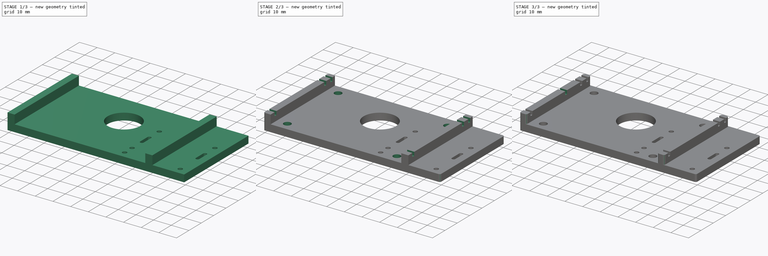
[diagram: build sequence overview — one tinted view per stage of 3, left to right]
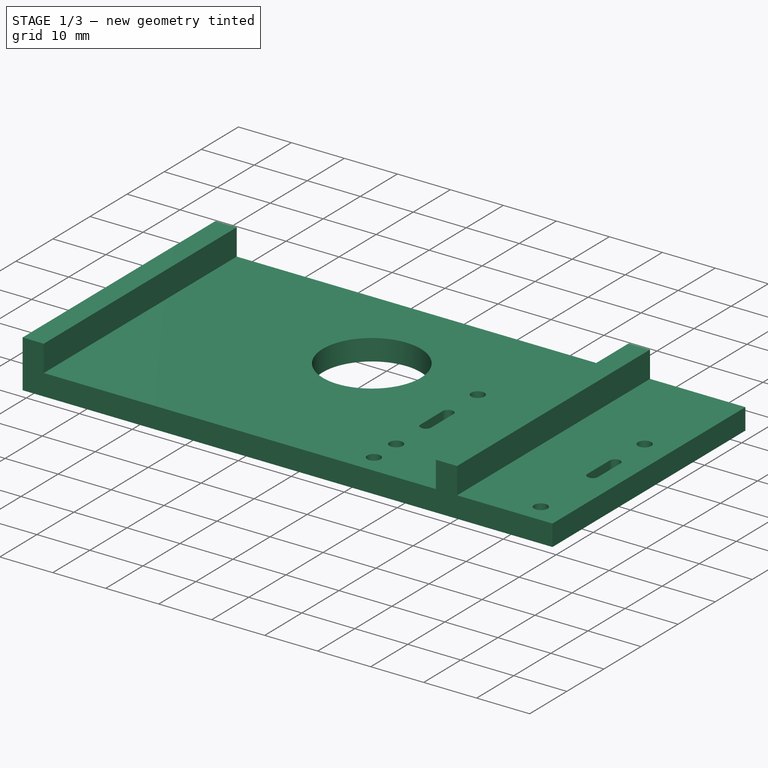
[diagram: stage 1 of 3 — iso view after this stage's code; geometry added in this stage tinted green]
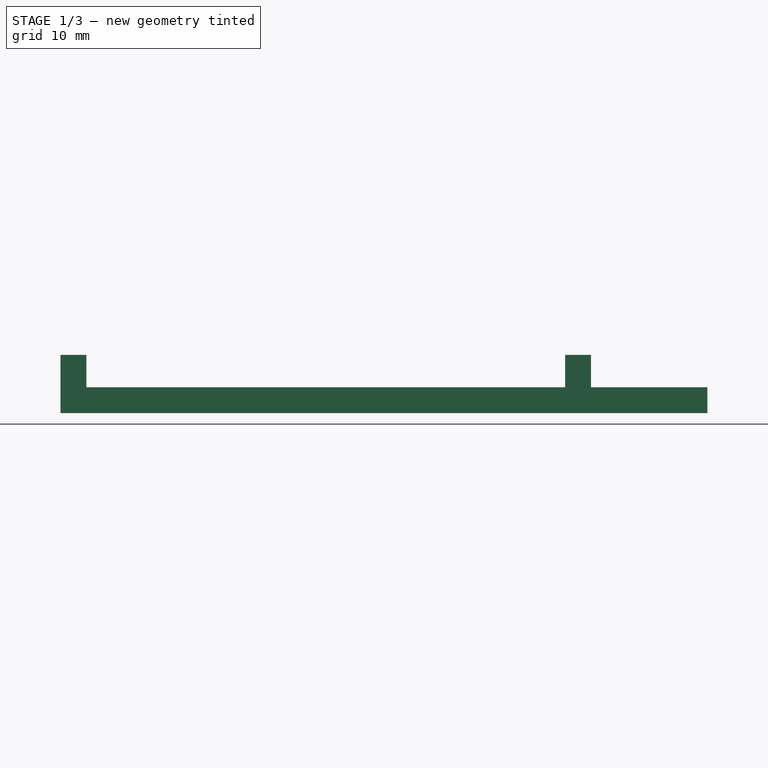
[diagram: stage 1 of 3 — front view after this stage's code; geometry added in this stage tinted green]
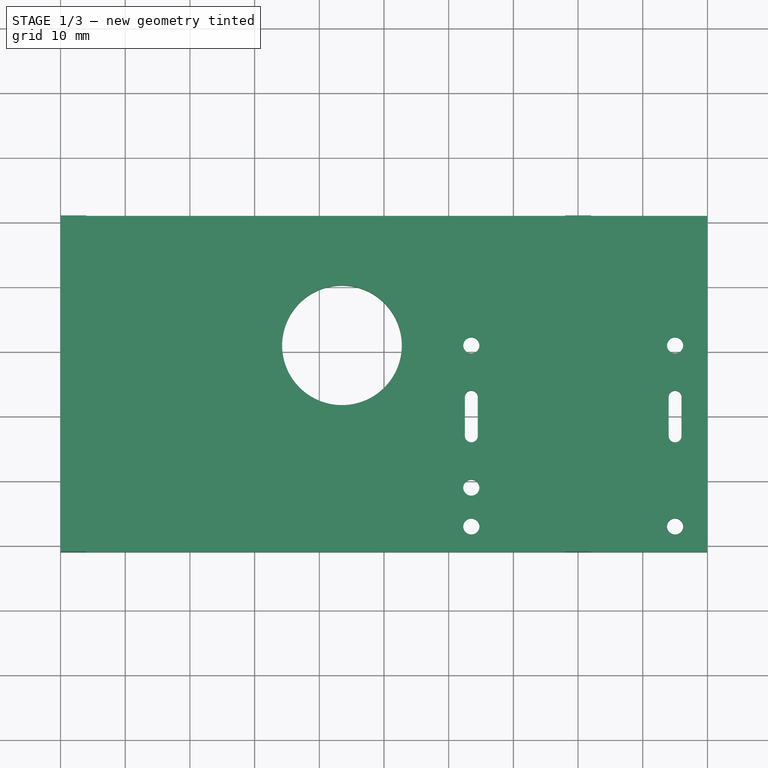
[diagram: stage 1 of 3 — top view after this stage's code; geometry added in this stage tinted green]
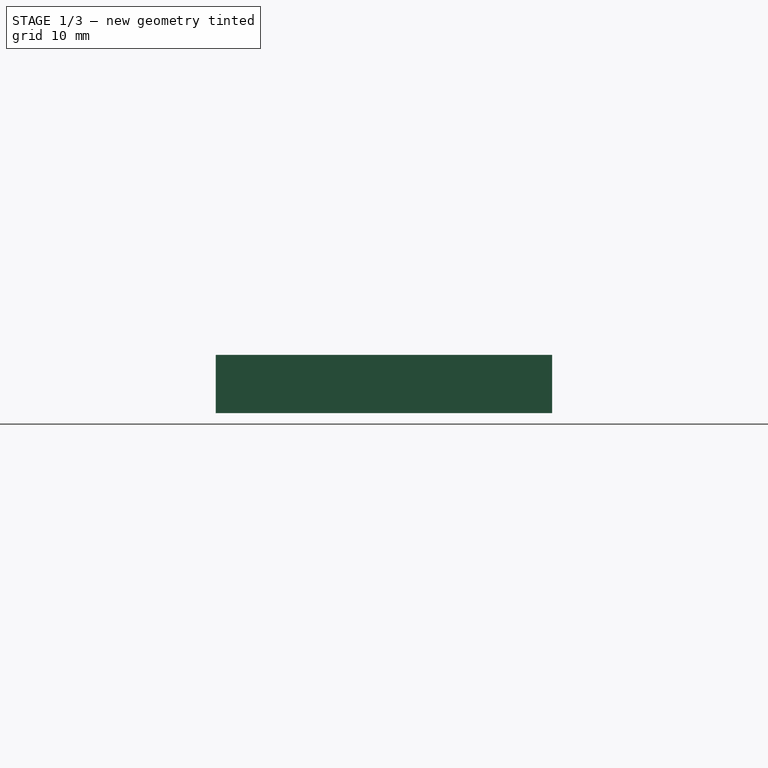
[diagram: stage 1 of 3 — right view after this stage's code; geometry added in this stage tinted green]
FCSTD DOCUMENT  (FreeCAD 0.19R)
Label: output_stage_base
License: All rights reserved
LicenseURL: http://en.wikipedia.org/wiki/All_rights_reserved
objects: Sketcher::SketchObject×5, PartDesign::Pocket×3, PartDesign::Pad×2, PartDesign::Fillet×2, PartDesign::Body×1
note: 20 computed .brp shape members not serialized (recipe doc carries the construction recipe); baked Part::Feature solids carry a one-line shape summary decoded from their .brp

FEATURE [Sketcher::SketchObject] Sketch
  FullyConstrained = true
  MapMode = 5
  Support = -> [XY_Plane]
  sketch-geometry (18):
    g0: LineSegment StartX=-50 StartY=31 StartZ=0 EndX=50 EndY=31 EndZ=0
    g1: LineSegment StartX=50 StartY=31 StartZ=0 EndX=50 EndY=-21 EndZ=0
    g2: LineSegment StartX=50 StartY=-21 StartZ=0 EndX=-50 EndY=-21 EndZ=0
    g3: LineSegment StartX=-50 StartY=-21 StartZ=0 EndX=-50 EndY=31 EndZ=0
    g4: LineSegment StartX=46 StartY=3 StartZ=0 EndX=46 EndY=-3 EndZ=0
    g5: LineSegment StartX=44 StartY=-3 StartZ=0 EndX=44 EndY=3 EndZ=0
    g6: ArcOfCircle CenterX=45 CenterY=3 CenterZ=0 NormalX=0 NormalY=0 NormalZ=1 AngleXU=0 Radius=1 StartAngle=0 EndAngle=3.14159
    g7: ArcOfCircle CenterX=45 CenterY=-3 CenterZ=0 NormalX=0 NormalY=0 NormalZ=1 AngleXU=0 Radius=1 StartAngle=3.14159 EndAngle=6.28319
    g8: LineSegment StartX=14.5 StartY=3 StartZ=0 EndX=14.5 EndY=-3 EndZ=0
    g9: LineSegment StartX=12.5 StartY=3 StartZ=0 EndX=12.5 EndY=-3 EndZ=0
    g10: ArcOfCircle CenterX=13.5 CenterY=3 CenterZ=0 NormalX=0 NormalY=0 NormalZ=1 AngleXU=0 Radius=1 StartAngle=0 EndAngle=3.14159
    g11: ArcOfCircle CenterX=13.5 CenterY=-3 CenterZ=0 NormalX=0 NormalY=0 NormalZ=1 AngleXU=0 Radius=1 StartAngle=3.14159 EndAngle=6.28319
    g12: Circle CenterX=13.5 CenterY=11 CenterZ=0 NormalX=0 NormalY=0 NormalZ=1 AngleXU=0 Radius=1.25
    g13: Circle CenterX=13.5 CenterY=-11 CenterZ=0 NormalX=0 NormalY=0 NormalZ=1 AngleXU=0 Radius=1.25
    g14: Circle CenterX=13.5 CenterY=-17 CenterZ=0 NormalX=0 NormalY=0 NormalZ=1 AngleXU=0 Radius=1.25
    g15: Circle CenterX=45 CenterY=-17 CenterZ=0 NormalX=0 NormalY=0 NormalZ=1 AngleXU=0 Radius=1.25
    g16: Circle CenterX=45 CenterY=11 CenterZ=0 NormalX=0 NormalY=0 NormalZ=1 AngleXU=0 Radius=1.25
    g17: Circle CenterX=-6.5 CenterY=11 CenterZ=0 NormalX=0 NormalY=0 NormalZ=1 AngleXU=0 Radius=9.25
  constraints (52):
    c: Coincident(g0,g1)
    c: Coincident(g1,g2)
    c: Coincident(g2,g3)
    c: Coincident(g3,g0)
    c: Horizontal(g0)
    c: Vertical(g1)
    c: Vertical(g3)
    c: Symmetric(g2,g1,g-2)
    c: DistanceX(g0,g0) = 100
    c: DistanceY(g1,g1) = 52
    c: DistanceY(g1,g-1) = 21
    c: Symmetric(g8,g8,g-1)
    c: Symmetric(g5,g5,g-1)
    c: Symmetric(g4,g4,g-1)
    c: Symmetric(g9,g9,g-1)
    c: Equal(g9,g8)
    c: Equal(g8,g5)
    c: Equal(g5,g4)
    c: Coincident(g10,g9)
    c: Coincident(g10,g8)
    c: Coincident(g5,g6)
    c: Coincident(g4,g6)
    c: Coincident(g11,g9)
    c: Coincident(g11,g8)
    c: Coincident(g7,g5)
    c: Coincident(g7,g4)
    c: Horizontal(g10,g9)
    c: Horizontal(g6,g5)
    c: Horizontal(g11,g9)
    c: Horizontal(g7,g5)
    c: Equal(g10,g6)
    c: DistanceX(g5,g4) = 2
    c: DistanceY(g7,g6) = 6
    c: DistanceX(g10,g6) = 31.5
    c: DistanceX(g7,g1) = 5
    c: Equal(g15,g14)
    c: Equal(g14,g13)
    c: Equal(g13,g12)
    c: Symmetric(g13,g12,g-1)
    c: Vertical(g13,g14)
    c: Vertical(g14,g11)
    c: Horizontal(g14,g15)
    c: Vertical(g15,g7)
    c: Equal(g16,g12)
    c: Horizontal(g12,g16)
    c: Vertical(g6,g16)
    c: Diameter(g15) = 2.5
    c: DistanceY(g-1,g16) = 11
    c: DistanceY(g14,g-1) = 17
    c: Horizontal(g17,g12)
    c: DistanceX(g17,g12) = 20
    c: Diameter(g17) = 18.5
FEATURE [PartDesign::Pad] Pad
  Direction = (1,1,1)
  Length = 4
  Length2 = 100
  Profile = -> Sketch
  Type = 0
FEATURE [Sketcher::SketchObject] Sketch001
  FullyConstrained = true
  MapMode = 5
  Placement = pos=(0,0,4) rot=(0,0,1;0rad)
  Support = -> [Pad]
  sketch-geometry (8):
    g0: LineSegment StartX=-50 StartY=31 StartZ=0 EndX=-46 EndY=31 EndZ=0
    g1: LineSegment StartX=-46 StartY=31 StartZ=0 EndX=-46 EndY=-21 EndZ=0
    g2: LineSegment StartX=-46 StartY=-21 StartZ=0 EndX=-50 EndY=-21 EndZ=0
    g3: LineSegment StartX=-50 StartY=-21 StartZ=0 EndX=-50 EndY=31 EndZ=0
    g4: LineSegment StartX=28 StartY=31 StartZ=0 EndX=32 EndY=31 EndZ=0
    g5: LineSegment StartX=32 StartY=31 StartZ=0 EndX=32 EndY=-21 EndZ=0
    g6: LineSegment StartX=32 StartY=-21 StartZ=0 EndX=28 EndY=-21 EndZ=0
    g7: LineSegment StartX=28 StartY=-21 StartZ=0 EndX=28 EndY=31 EndZ=0
  constraints (24):
    c: Coincident(g0,g1)
    c: Coincident(g1,g2)
    c: Coincident(g2,g3)
    c: Coincident(g3,g0)
    c: Horizontal(g0)
    c: Horizontal(g2)
    c: Vertical(g1)
    c: Vertical(g3)
    c: Coincident(g4,g5)
    c: Coincident(g5,g6)
    c: Coincident(g6,g7)
    c: Coincident(g7,g4)
    c: Horizontal(g4)
    c: Horizontal(g6)
    c: Vertical(g5)
    c: Vertical(g7)
    c: DistanceX(g2,g-1) = 50
    c: DistanceX(g2,g2) = 4
    c: DistanceX(g-1,g5) = 32
    c: Equal(g6,g2)
    c: Equal(g5,g1)
    c: DistanceY(g5,g-1) = 21
    c: Horizontal(g6,g1)
    c: DistanceY(g5,g5) = 52
FEATURE [PartDesign::Pad] Pad001
  BaseFeature = -> Pad
  Direction = (1,1,1)
  Length = 5
  Length2 = 100
  Profile = -> Sketch001
  Type = 0
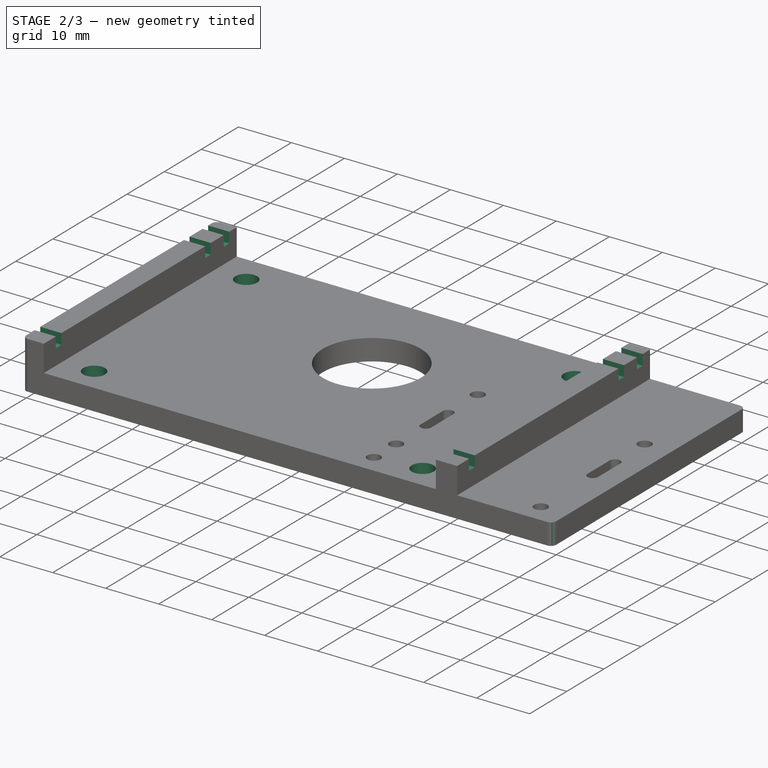
[diagram: stage 2 of 3 — iso view after this stage's code; geometry added in this stage tinted green]
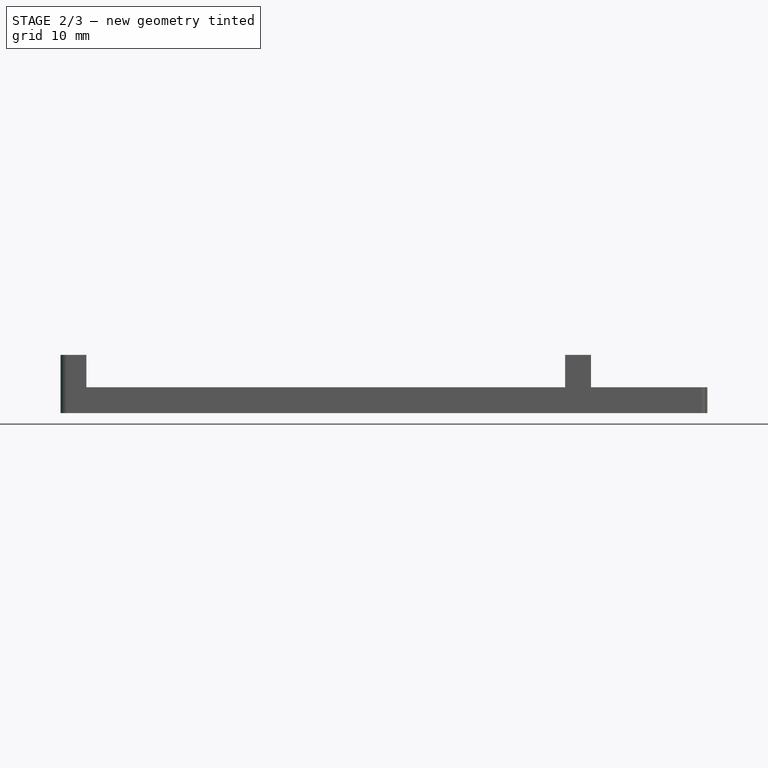
[diagram: stage 2 of 3 — front view after this stage's code; geometry added in this stage tinted green]
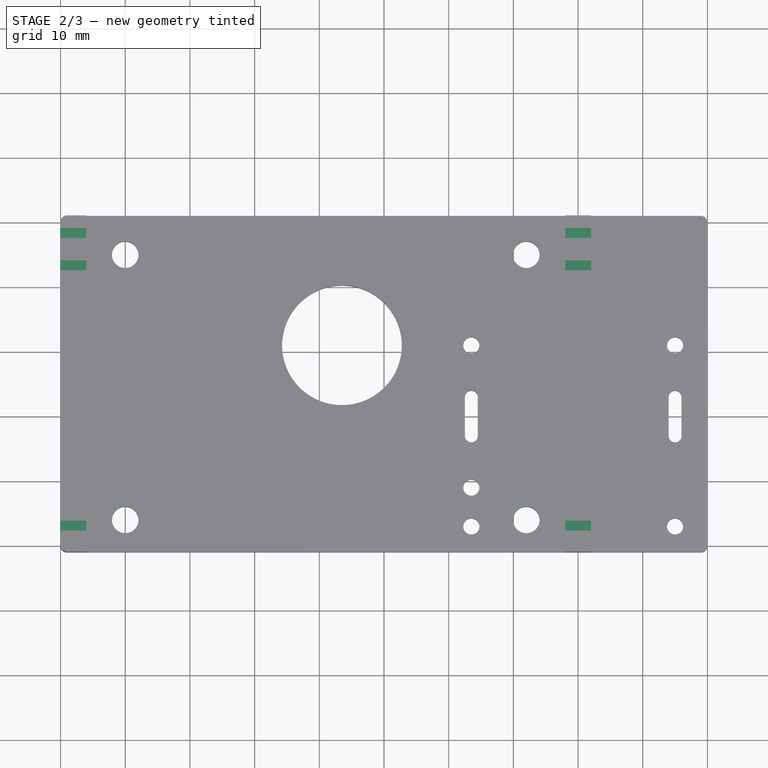
[diagram: stage 2 of 3 — top view after this stage's code; geometry added in this stage tinted green]
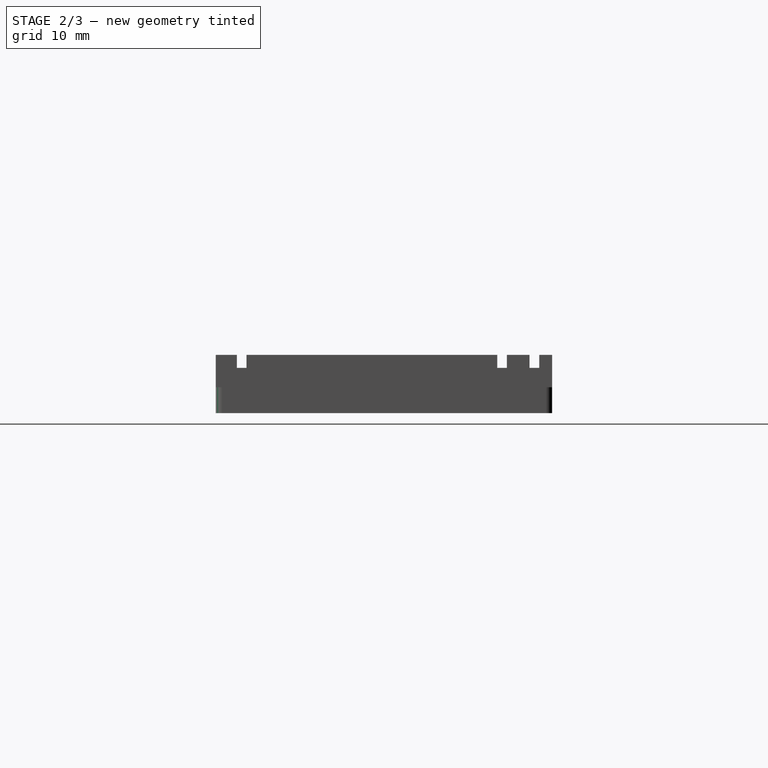
[diagram: stage 2 of 3 — right view after this stage's code; geometry added in this stage tinted green]
FEATURE [Sketcher::SketchObject] Sketch002
  FullyConstrained = true
  MapMode = 5
  Placement = pos=(0,0,9) rot=(0,0,1;0rad)
  Support = -> [Pad001]
  sketch-geometry (12):
    g0: LineSegment StartX=-50 StartY=29 StartZ=0 EndX=32 EndY=29 EndZ=0
    g1: LineSegment StartX=32 StartY=29 StartZ=0 EndX=32 EndY=27.5 EndZ=0
    g2: LineSegment StartX=32 StartY=27.5 StartZ=0 EndX=-50 EndY=27.5 EndZ=0
    g3: LineSegment StartX=-50 StartY=27.5 StartZ=0 EndX=-50 EndY=29 EndZ=0
    g4: LineSegment StartX=-50 StartY=22.5 StartZ=0 EndX=32 EndY=22.5 EndZ=0
    g5: LineSegment StartX=32 StartY=22.5 StartZ=0 EndX=32 EndY=24 EndZ=0
    g6: LineSegment StartX=32 StartY=24 StartZ=0 EndX=-50 EndY=24 EndZ=0
    g7: LineSegment StartX=-50 StartY=24 StartZ=0 EndX=-50 EndY=22.5 EndZ=0
    g8: LineSegment StartX=-50 StartY=-16.25 StartZ=0 EndX=32 EndY=-16.25 EndZ=0
    g9: LineSegment StartX=32 StartY=-16.25 StartZ=0 EndX=32 EndY=-17.75 EndZ=0
    g10: LineSegment StartX=32 StartY=-17.75 StartZ=0 EndX=-50 EndY=-17.75 EndZ=0
    g11: LineSegment StartX=-50 StartY=-17.75 StartZ=0 EndX=-50 EndY=-16.25 EndZ=0
  constraints (36):
    c: Coincident(g0,g1)
    c: Coincident(g1,g2)
    c: Coincident(g2,g3)
    c: Coincident(g3,g0)
    c: Horizontal(g0)
    c: Horizontal(g2)
    c: Vertical(g1)
    c: Vertical(g3)
    c: Coincident(g4,g5)
    c: Coincident(g5,g6)
    c: Coincident(g6,g7)
    c: Coincident(g7,g4)
    c: Horizontal(g4)
    c: Horizontal(g6)
    c: Vertical(g5)
    c: Vertical(g7)
    c: Coincident(g8,g9)
    c: Coincident(g9,g10)
    c: Coincident(g10,g11)
    c: Coincident(g11,g8)
    c: Horizontal(g8)
    c: Horizontal(g10)
    c: Vertical(g9)
    c: Vertical(g11)
    c: Equal(g9,g5)
    c: Equal(g5,g1)
    c: DistanceY(g1,g1) = 1.5
    c: Vertical(g2,g6)
    c: Vertical(g6,g10)
    c: Equal(g2,g6)
    c: Equal(g6,g10)
    c: DistanceX(g0,g-1) = 50
    c: DistanceX(g-1,g0) = 32
    c: DistanceY(g-1,g5) = 24
    c: DistanceY(g4,g1) = 5
    c: DistanceY(g9,g-1) = 17.75
FEATURE [PartDesign::Pocket] Pocket
  BaseFeature = -> Pad001
  Length = 2
  Length2 = 100
  Profile = -> Sketch002
  Type = 0
FEATURE [Sketcher::SketchObject] Sketch003
  FullyConstrained = true
  MapMode = 5
  Placement = pos=(0,0,4) rot=(0,0,1;0rad)
  Support = -> [Pocket]
  sketch-geometry (4):
    g0: Circle CenterX=-40 CenterY=25 CenterZ=0 NormalX=0 NormalY=0 NormalZ=1 AngleXU=0 Radius=2.05
    g1: Circle CenterX=-40 CenterY=-16 CenterZ=0 NormalX=0 NormalY=0 NormalZ=1 AngleXU=0 Radius=2.05
    g2: Circle CenterX=22 CenterY=25 CenterZ=0 NormalX=0 NormalY=0 NormalZ=1 AngleXU=0 Radius=2.05
    g3: Circle CenterX=22 CenterY=-16 CenterZ=0 NormalX=0 NormalY=0 NormalZ=1 AngleXU=0 Radius=2.05
  constraints (12):
    c: Equal(g0,g1)
    c: Equal(g1,g2)
    c: Equal(g2,g3)
    c: Horizontal(g0,g2)
    c: Horizontal(g1,g3)
    c: Vertical(g1,g0)
    c: Vertical(g3,g2)
    c: DistanceX(g0,g-1) = 40
    c: Diameter(g0) = 4.1
    c: DistanceX(g-1,g2) = 22
    c: DistanceY(g-1,g0) = 25
    c: DistanceY(g1,g-1) = 16
FEATURE [PartDesign::Pocket] Pocket001
  BaseFeature = -> Pocket
  Length = 5
  Length2 = 100
  Profile = -> Sketch003
  Type = 0
FEATURE [PartDesign::Fillet] Fillet
  Base = -> Pocket001 [Edge8,Edge11,Edge2,Edge1]
  BaseFeature = -> Pocket001
  Radius = 1
  SupportTransform = false
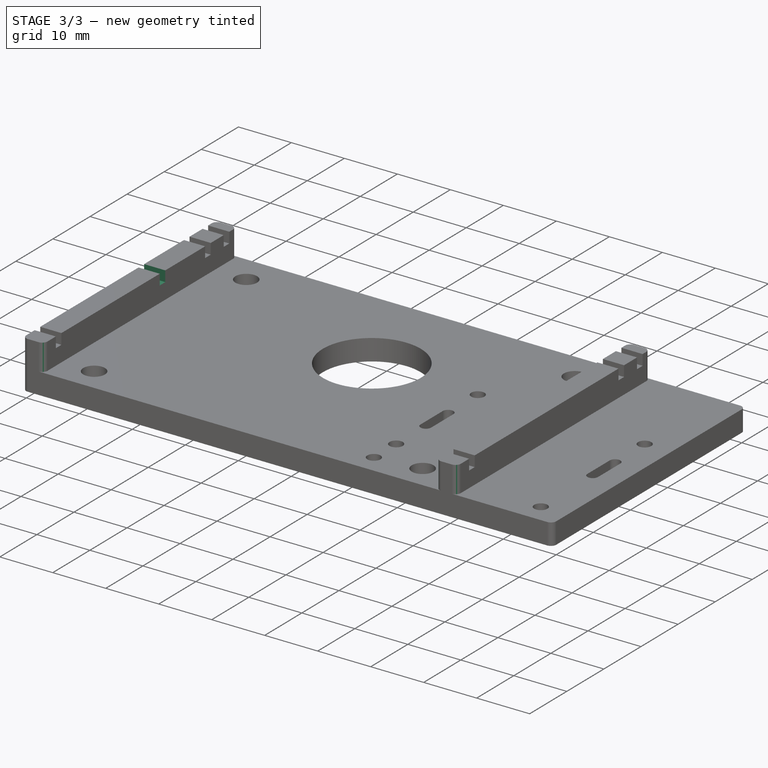
[diagram: stage 3 of 3 — iso view after this stage's code; geometry added in this stage tinted green]
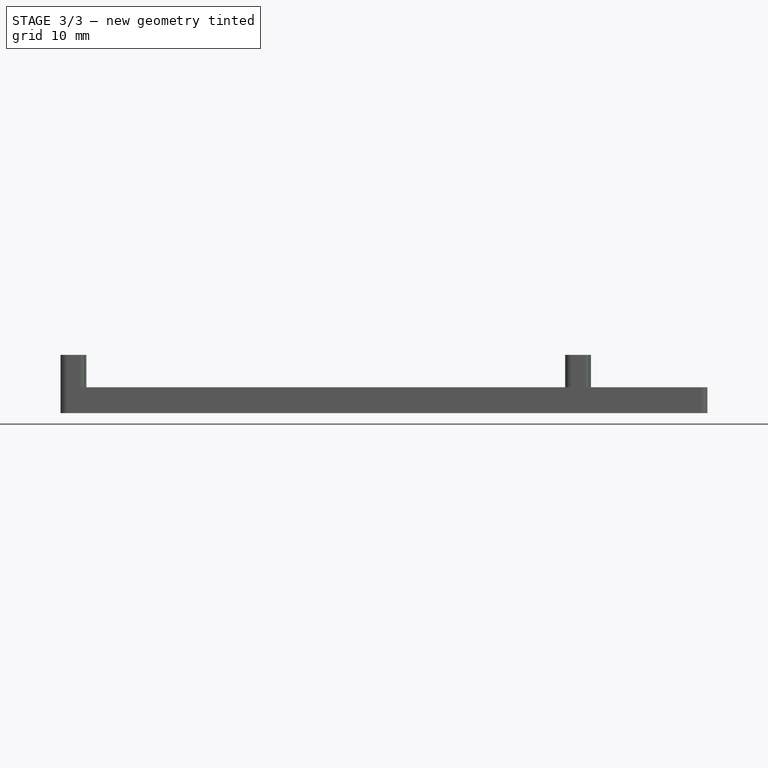
[diagram: stage 3 of 3 — front view after this stage's code; geometry added in this stage tinted green]
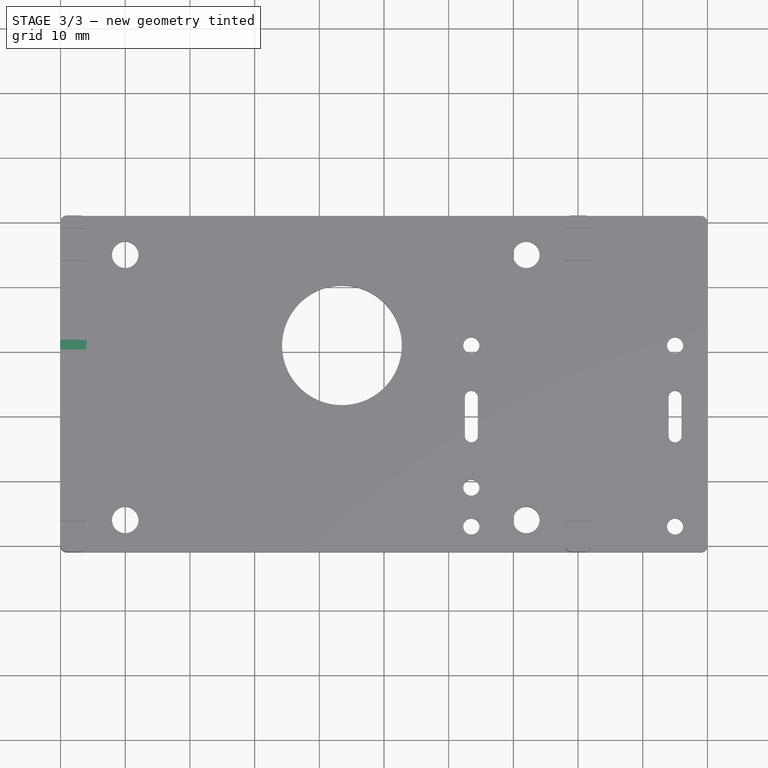
[diagram: stage 3 of 3 — top view after this stage's code; geometry added in this stage tinted green]
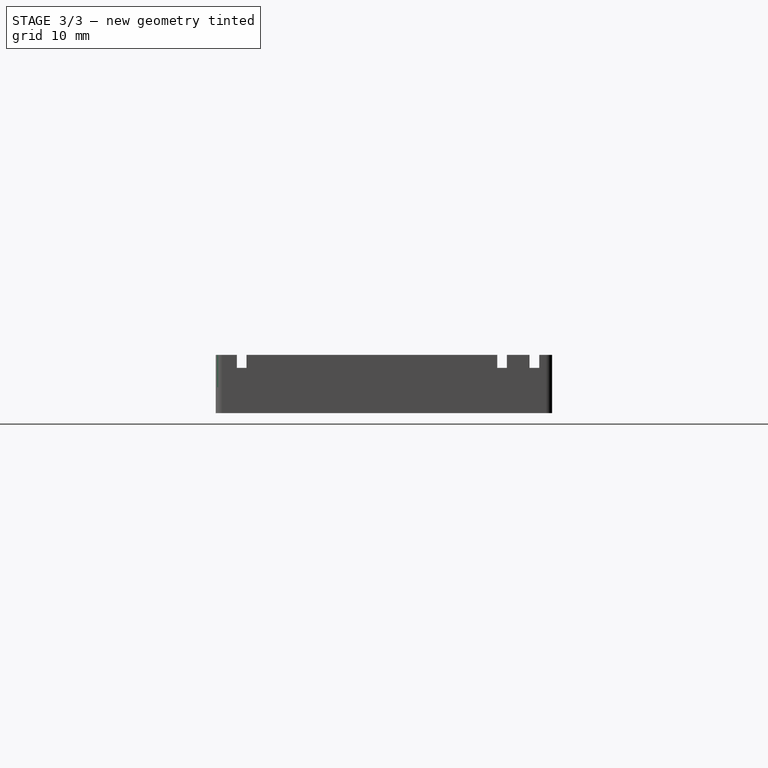
[diagram: stage 3 of 3 — right view after this stage's code; geometry added in this stage tinted green]
FEATURE [PartDesign::Fillet] Fillet001
  Base = -> Fillet [Edge38,Edge96,Edge65,Edge66,Edge139,Edge112]
  BaseFeature = -> Fillet
  Radius = 1
  SupportTransform = false
FEATURE [Sketcher::SketchObject] Sketch004
  FullyConstrained = true
  MapMode = 5
  Placement = pos=(0,0,9) rot=(0,0,1;0rad)
  Support = -> [Fillet001]
  sketch-geometry (4):
    g0: LineSegment StartX=-50 StartY=11.75 StartZ=0 EndX=-46 EndY=11.75 EndZ=0
    g1: LineSegment StartX=-46 StartY=11.75 StartZ=0 EndX=-46 EndY=10.25 EndZ=0
    g2: LineSegment StartX=-46 StartY=10.25 StartZ=0 EndX=-50 EndY=10.25 EndZ=0
    g3: LineSegment StartX=-50 StartY=10.25 StartZ=0 EndX=-50 EndY=11.75 EndZ=0
  constraints (12):
    c: Coincident(g0,g1)
    c: Coincident(g1,g2)
    c: Coincident(g2,g3)
    c: Coincident(g3,g0)
    c: Horizontal(g0)
    c: Horizontal(g2)
    c: Vertical(g1)
    c: Vertical(g3)
    c: DistanceX(g2,g2) = 4
    c: DistanceY(g1,g1) = 1.5
    c: DistanceY(g-1,g0) = 11.75
    c: DistanceX(g2,g-1) = 50
FEATURE [PartDesign::Pocket] Pocket002
  BaseFeature = -> Fillet001
  Length = 2
  Length2 = 100
  Profile = -> Sketch004
  Type = 0
FEATURE [PartDesign::Body] Body
  Group = -> [Sketch,Pad,Sketch001,Pad001,Sketch002,Pocket,Sketch003,Pocket001,Fillet,Fillet001,Sketch004,Pocket002]
  Origin = -> Origin
  Tip = -> Pocket002
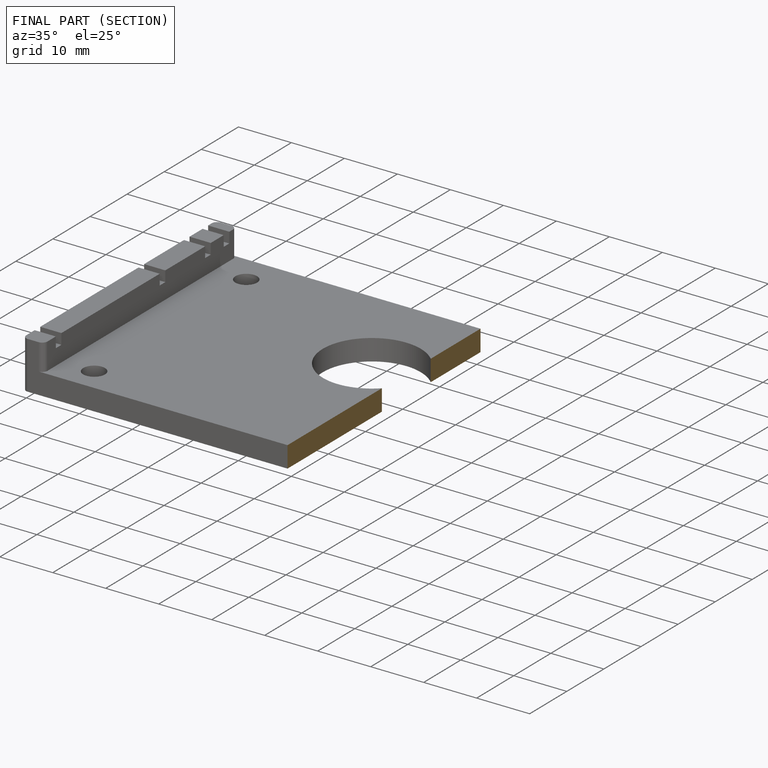
[diagram: finished part — half-section view (interior)]
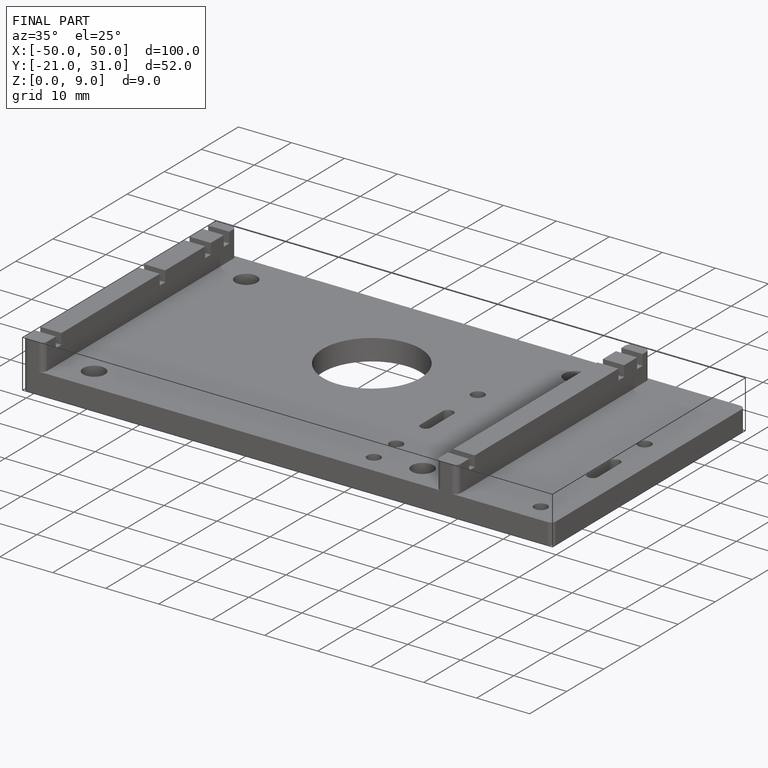
[diagram: finished part — iso view with bounding-box wireframe]
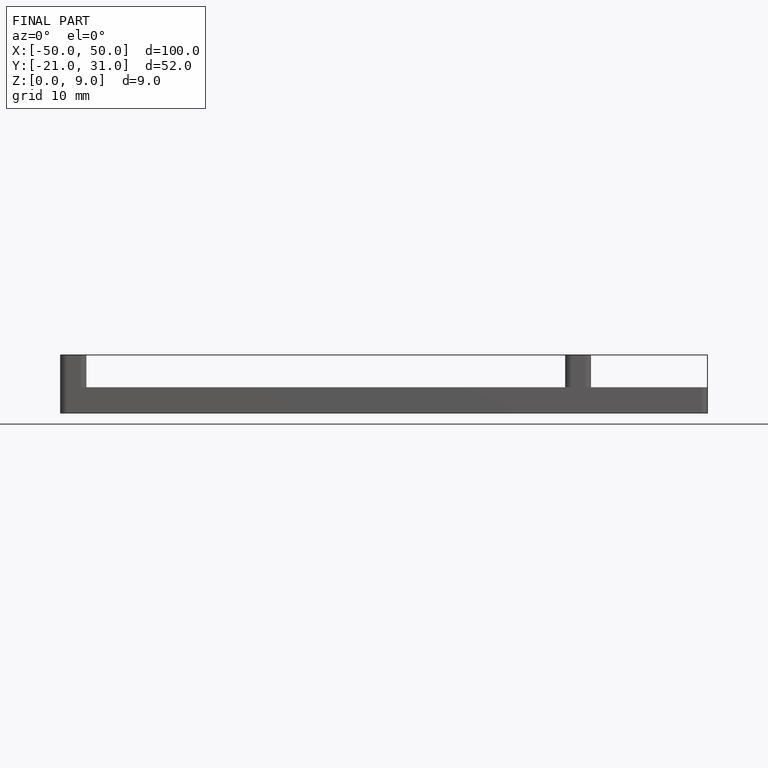
[diagram: finished part — front view with bounding-box wireframe]
